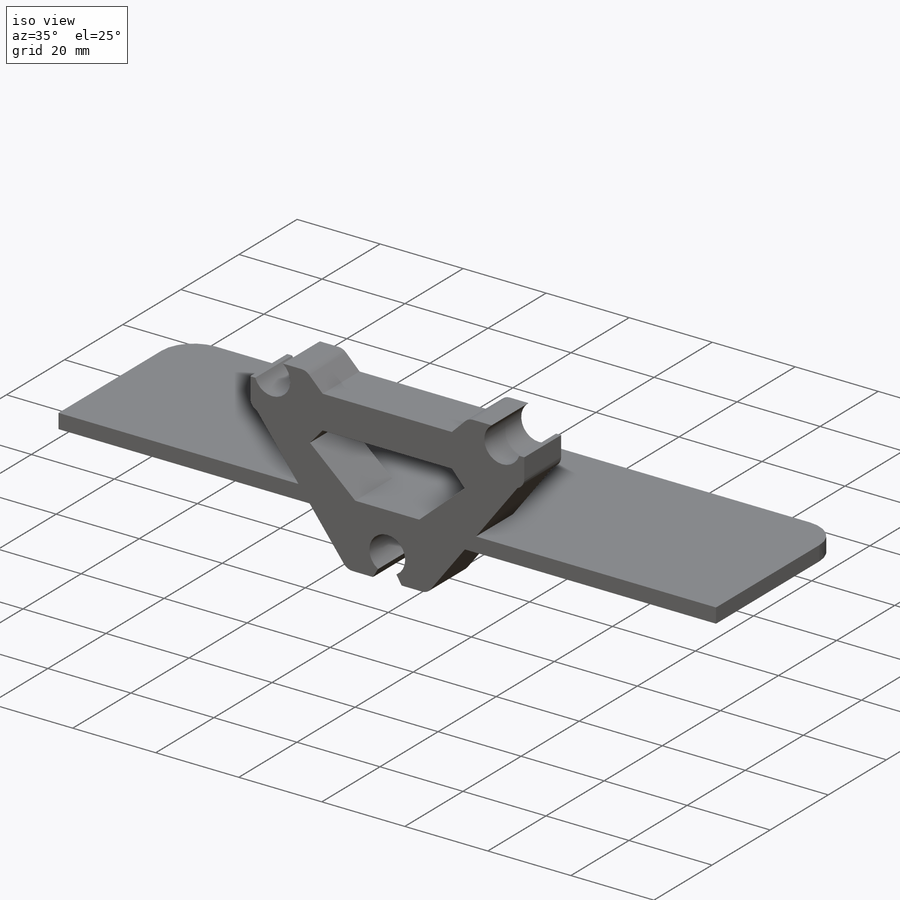
[diagram: iso view]
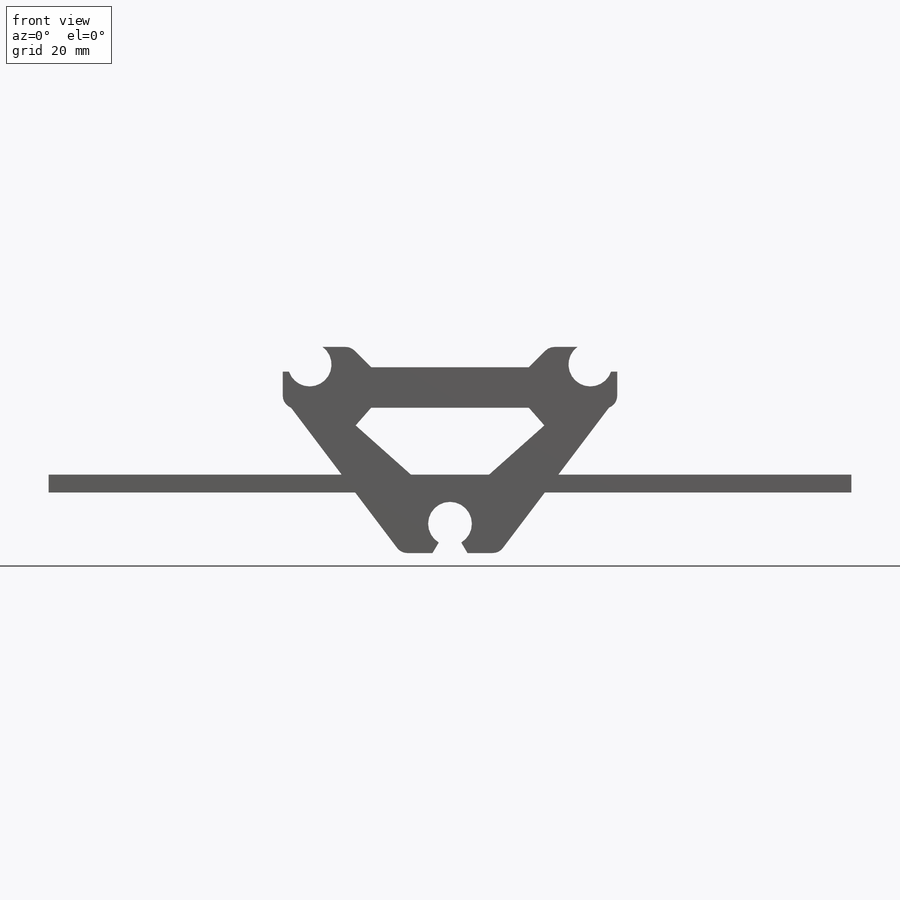
[diagram: front view]
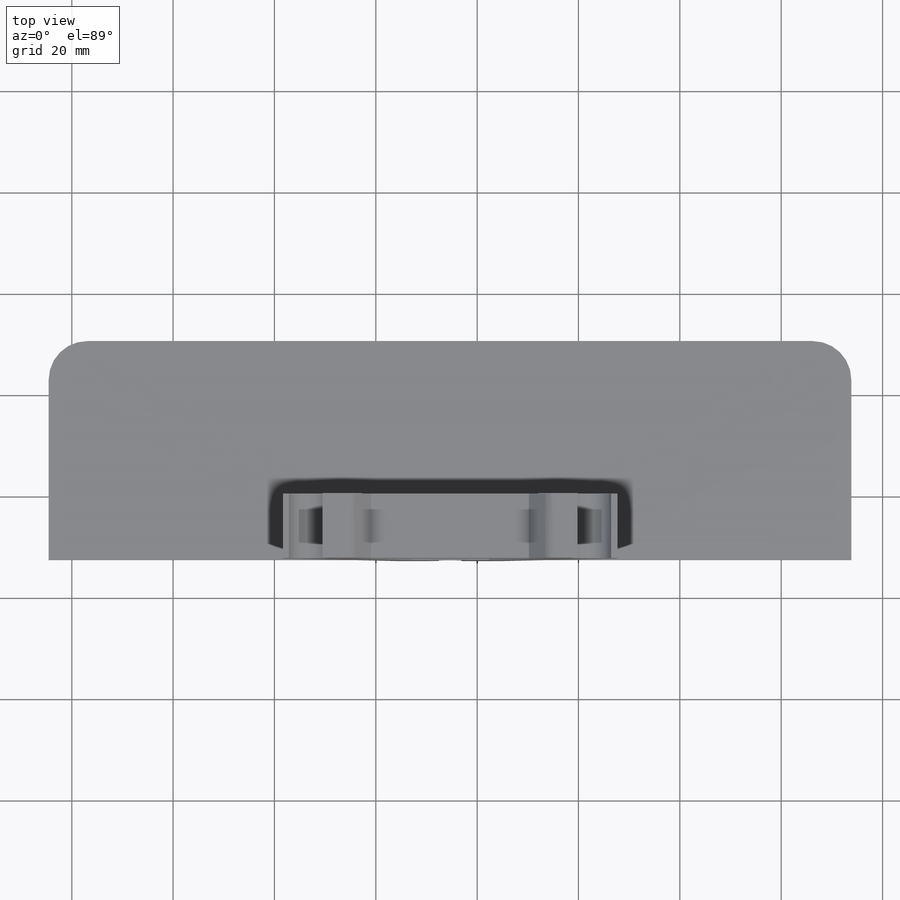
[diagram: top view]
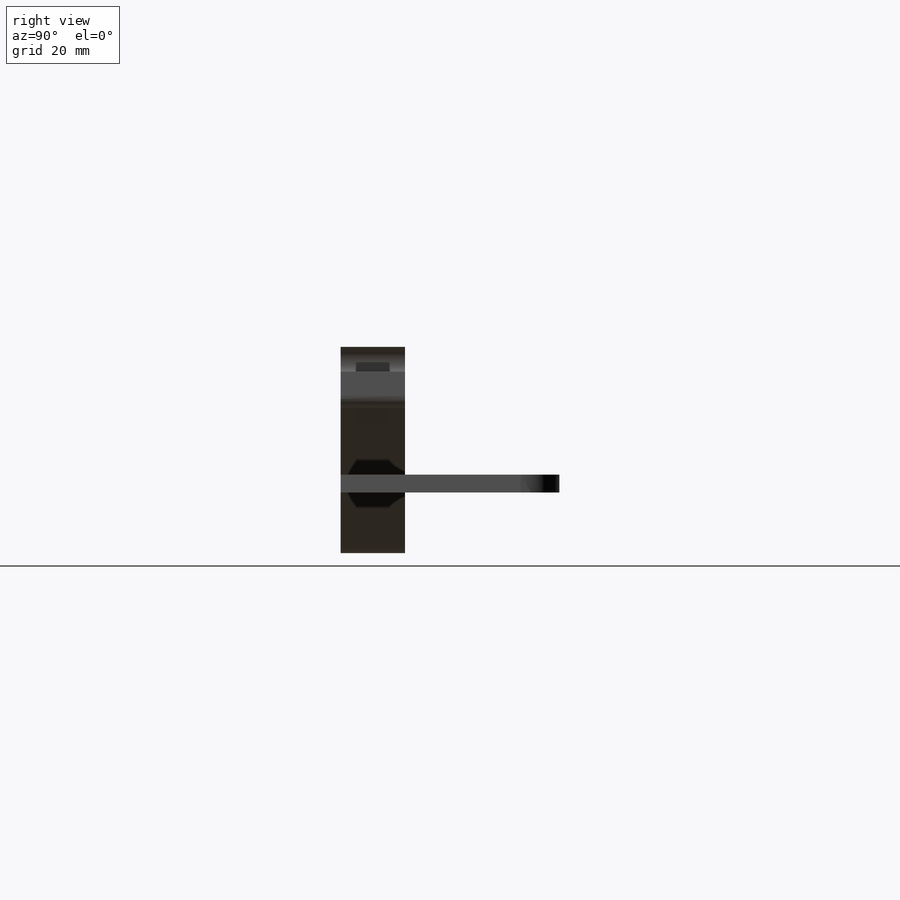
[diagram: right view]
SOLIDWORKS PART (.sldprt)
format: sldprt  version: not decoded by parser v0  size: 238,592 bytes
history: native  units: mm
features: sketch x3, extrude x3, fillet x2, material x1 (+11 scaffold rows collapsed)
feature tree (20):
  scaffold x11  (default folders/planes/origin — collapsed)
  material  "Material <not specified>"
  sketch  "Sketch1"  dims[c1.D2=3.2mm c1.D5=3.81mm c1.D1=4.318mm c2.D2=4.318mm c2.D1=63.5mm c2.D3=31.75mm c2.D4=38.1mm c3.D2=58.42mm c3.D3=30.48mm c3.D4=30.48mm c4.D3=~32.256278mm]
  extrude  "Boss-Extrude1"  Depth=12.7mm
  fillet  "Fillet1"  Radius=2.54mm
  sketch  "Sketch3"
  extrude  "Boss-Extrude2"  Depth=30.48mm
  sketch  "Sketch4"
  extrude  "Boss-Extrude3"  [1 undecoded]
  fillet  "Fillet2"  Radius=7.62mm
decode coverage: 5 of 8 modeling features carry decoded parameters
note: ~ marks probable driven/reference dimensions
note: 1 parameter value undecoded
note: suppression state not decoded; provenance and decode notes live in map.json
